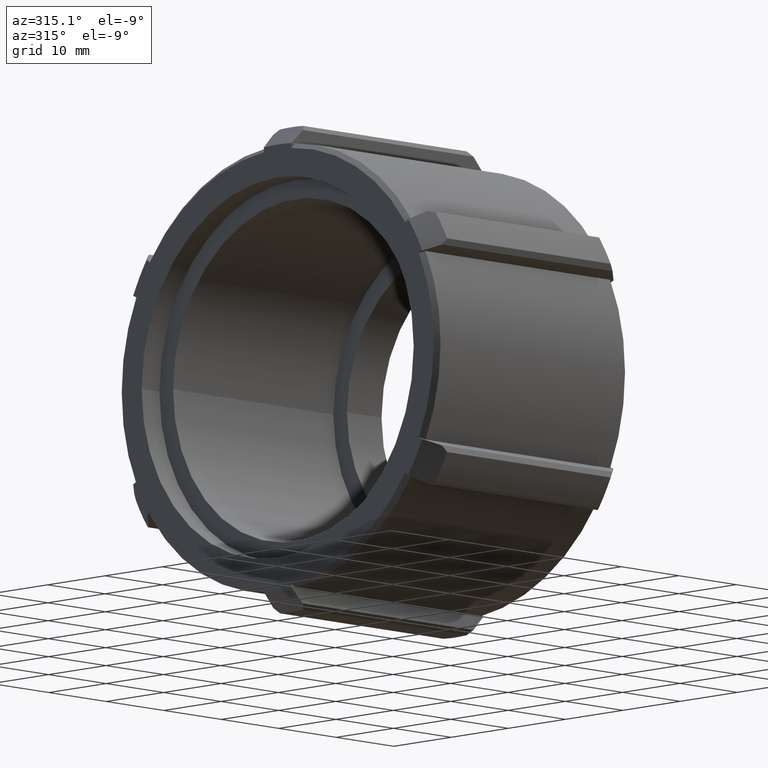
[diagram: clean part render]
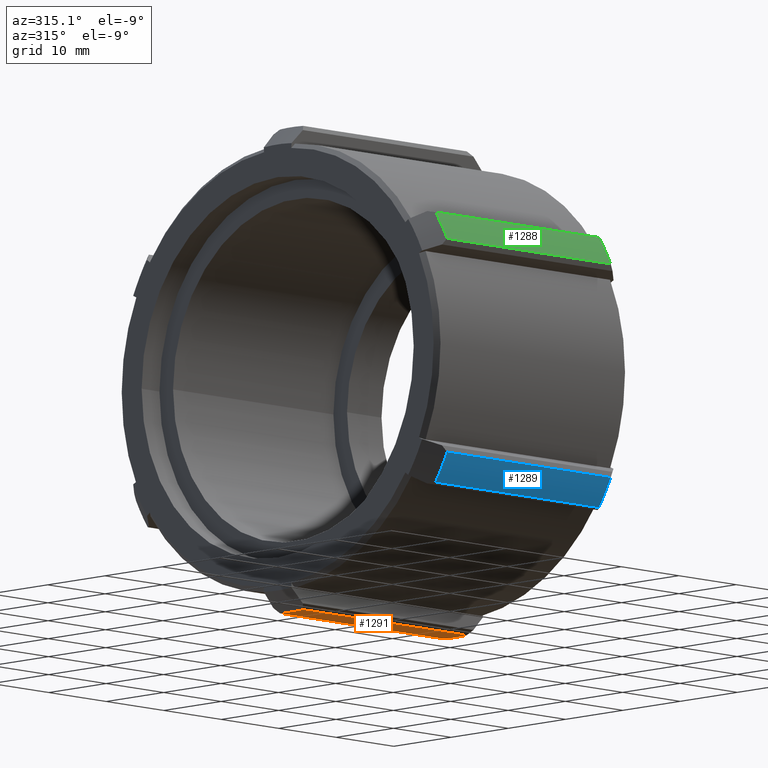
[diagram: same view with three faces highlighted in distinct colors, each labeled with its STEP entity id]
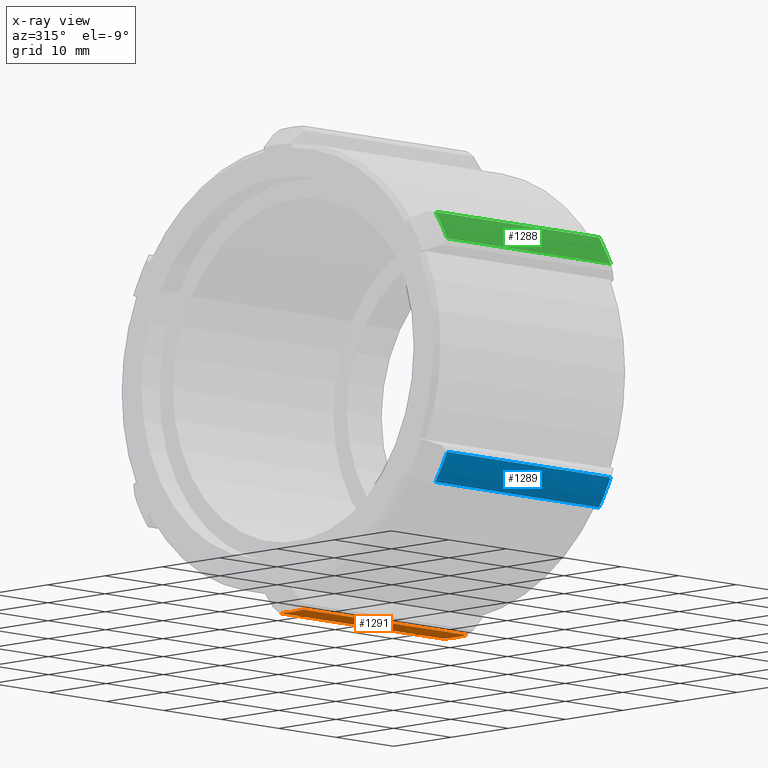
[diagram: x-ray of the same camera — body ghosted, the three highlighted faces saturated]
A machine part, auxiliary view with three faces highlighted in distinct colors.
The next image is the same camera in x-ray (body ghosted, the three faces saturated) — at least one of them is partly hidden behind the body in this view.
Their STEP definitions:

[orange] entity #1291 — the highlighted cylindrical surface (partial cylindrical patch) has radius 30.25 mm, axis along (1, 0, 0).
#74=CYLINDRICAL_SURFACE('',#1414,30.25);
#133=LINE('',#2014,#241);
#139=LINE('',#2034,#247);
#241=VECTOR('',#1615,28.46);
#247=VECTOR('',#1629,28.46);
#387=FACE_OUTER_BOUND('',#461,.T.);
#461=EDGE_LOOP('',(#1163,#1164,#1165,#1166));
#525=CIRCLE('',#1373,30.25);
#535=CIRCLE('',#1415,30.25);
#624=VERTEX_POINT('',#2009);
#625=VERTEX_POINT('',#2013);
#627=VERTEX_POINT('',#2025);
#629=VERTEX_POINT('',#2033);
#769=EDGE_CURVE('',#624,#625,#133,.T.);
#775=EDGE_CURVE('',#625,#627,#525,.T.);
#778=EDGE_CURVE('',#627,#629,#139,.T.);
#847=EDGE_CURVE('',#629,#624,#535,.T.);
#1163=ORIENTED_EDGE('',*,*,#769,.F.);
#1164=ORIENTED_EDGE('',*,*,#847,.F.);
#1165=ORIENTED_EDGE('',*,*,#778,.F.);
#1166=ORIENTED_EDGE('',*,*,#775,.F.);
#1291=ADVANCED_FACE('',(#387),#74,.T.);
#1373=AXIS2_PLACEMENT_3D('',#2026,#1624,#1625);
#1414=AXIS2_PLACEMENT_3D('',#2201,#1750,#1751);
#1415=AXIS2_PLACEMENT_3D('',#2202,#1752,#1753);
#1615=DIRECTION('',(-1.,0.,0.));
#1624=DIRECTION('center_axis',(-1.,0.,0.));
#1625=DIRECTION('ref_axis',(0.,-1.,0.));
#1629=DIRECTION('',(1.,0.,0.));
#1750=DIRECTION('center_axis',(1.,0.,0.));
#1751=DIRECTION('ref_axis',(0.,1.,0.));
#1752=DIRECTION('center_axis',(1.,0.,0.));
#1753=DIRECTION('ref_axis',(0.,-1.,0.));
#2009=CARTESIAN_POINT('',(30.88,2.03326626917051,-30.1815892271871));
#2013=CARTESIAN_POINT('',(2.42,2.03326626917051,-30.1815892271871));
#2014=CARTESIAN_POINT('',(16.65,2.03326626917051,-30.1815892271871));
#2025=CARTESIAN_POINT('',(2.42,-2.03326626917059,-30.181589227187));
#2026=CARTESIAN_POINT('Origin',(2.42,0.,0.));
#2033=CARTESIAN_POINT('',(30.88,-2.03326626917059,-30.181589227187));
#2034=CARTESIAN_POINT('',(16.65,-2.03326626917059,-30.181589227187));
#2201=CARTESIAN_POINT('Origin',(16.65,0.,0.));
#2202=CARTESIAN_POINT('Origin',(30.88,0.,0.));

[blue] entity #1289 — the highlighted cylindrical surface (partial cylindrical patch) has radius 30.25 mm, axis along (1, 0, 0).
#72=CYLINDRICAL_SURFACE('',#1410,30.25);
#143=LINE('',#2050,#251);
#149=LINE('',#2070,#257);
#251=VECTOR('',#1637,28.46);
#257=VECTOR('',#1651,28.46);
#385=FACE_OUTER_BOUND('',#459,.T.);
#459=EDGE_LOOP('',(#1155,#1156,#1157,#1158));
#526=CIRCLE('',#1379,30.25);
#533=CIRCLE('',#1411,30.25);
#632=VERTEX_POINT('',#2045);
#633=VERTEX_POINT('',#2049);
#635=VERTEX_POINT('',#2061);
#637=VERTEX_POINT('',#2069);
#784=EDGE_CURVE('',#632,#633,#143,.T.);
#790=EDGE_CURVE('',#633,#635,#526,.T.);
#793=EDGE_CURVE('',#635,#637,#149,.T.);
#844=EDGE_CURVE('',#637,#632,#533,.T.);
#1155=ORIENTED_EDGE('',*,*,#784,.F.);
#1156=ORIENTED_EDGE('',*,*,#844,.F.);
#1157=ORIENTED_EDGE('',*,*,#793,.F.);
#1158=ORIENTED_EDGE('',*,*,#790,.F.);
#1289=ADVANCED_FACE('',(#385),#72,.T.);
#1379=AXIS2_PLACEMENT_3D('',#2062,#1646,#1647);
#1410=AXIS2_PLACEMENT_3D('',#2195,#1741,#1742);
#1411=AXIS2_PLACEMENT_3D('',#2196,#1743,#1744);
#1637=DIRECTION('',(-1.,0.,0.));
#1646=DIRECTION('center_axis',(-1.,0.,0.));
#1647=DIRECTION('ref_axis',(0.,-1.,0.));
#1651=DIRECTION('',(1.,0.,0.));
#1741=DIRECTION('center_axis',(1.,0.,0.));
#1742=DIRECTION('ref_axis',(0.,1.,0.));
#1743=DIRECTION('center_axis',(1.,0.,0.));
#1744=DIRECTION('ref_axis',(0.,-1.,0.));
#2045=CARTESIAN_POINT('',(30.88,-25.1213898627455,-16.8516548553532));
#2049=CARTESIAN_POINT('',(2.42,-25.1213898627455,-16.8516548553532));
#2050=CARTESIAN_POINT('',(16.65,-25.1213898627455,-16.8516548553532));
#2061=CARTESIAN_POINT('',(2.42,-27.154656131916,-13.3299343718338));
#2062=CARTESIAN_POINT('Origin',(2.42,0.,0.));
#2069=CARTESIAN_POINT('',(30.88,-27.154656131916,-13.3299343718338));
#2070=CARTESIAN_POINT('',(16.65,-27.154656131916,-13.3299343718338));
#2195=CARTESIAN_POINT('Origin',(16.65,0.,0.));
#2196=CARTESIAN_POINT('Origin',(30.88,0.,0.));

[green] entity #1288 — the highlighted cylindrical surface (partial cylindrical patch) has radius 30.25 mm, axis along (1, 0, 0).
#71=CYLINDRICAL_SURFACE('',#1408,30.25);
#153=LINE('',#2086,#261);
#159=LINE('',#2106,#267);
#261=VECTOR('',#1659,28.46);
#267=VECTOR('',#1673,28.46);
#384=FACE_OUTER_BOUND('',#458,.T.);
#458=EDGE_LOOP('',(#1151,#1152,#1153,#1154));
#527=CIRCLE('',#1385,30.25);
#532=CIRCLE('',#1409,30.25);
#640=VERTEX_POINT('',#2081);
#641=VERTEX_POINT('',#2085);
#643=VERTEX_POINT('',#2097);
#645=VERTEX_POINT('',#2105);
#799=EDGE_CURVE('',#640,#641,#153,.T.);
#805=EDGE_CURVE('',#641,#643,#527,.T.);
#808=EDGE_CURVE('',#643,#645,#159,.T.);
#843=EDGE_CURVE('',#645,#640,#532,.T.);
#1151=ORIENTED_EDGE('',*,*,#799,.F.);
#1152=ORIENTED_EDGE('',*,*,#843,.F.);
#1153=ORIENTED_EDGE('',*,*,#808,.F.);
#1154=ORIENTED_EDGE('',*,*,#805,.F.);
#1288=ADVANCED_FACE('',(#384),#71,.T.);
#1385=AXIS2_PLACEMENT_3D('',#2098,#1668,#1669);
#1408=AXIS2_PLACEMENT_3D('',#2193,#1737,#1738);
#1409=AXIS2_PLACEMENT_3D('',#2194,#1739,#1740);
#1659=DIRECTION('',(-1.,0.,0.));
#1668=DIRECTION('center_axis',(-1.,0.,0.));
#1669=DIRECTION('ref_axis',(0.,-1.,0.));
#1673=DIRECTION('',(1.,0.,0.));
#1737=DIRECTION('center_axis',(1.,0.,0.));
#1738=DIRECTION('ref_axis',(0.,1.,0.));
#1739=DIRECTION('center_axis',(1.,0.,0.));
#1740=DIRECTION('ref_axis',(0.,-1.,0.));
#2081=CARTESIAN_POINT('',(30.88,-27.154656131916,13.3299343718338));
#2085=CARTESIAN_POINT('',(2.42,-27.154656131916,13.3299343718338));
#2086=CARTESIAN_POINT('',(16.65,-27.154656131916,13.3299343718338));
#2097=CARTESIAN_POINT('',(2.42,-25.1213898627454,16.8516548553533));
#2098=CARTESIAN_POINT('Origin',(2.42,0.,0.));
#2105=CARTESIAN_POINT('',(30.88,-25.1213898627454,16.8516548553533));
#2106=CARTESIAN_POINT('',(16.65,-25.1213898627454,16.8516548553533));
#2193=CARTESIAN_POINT('Origin',(16.65,0.,0.));
#2194=CARTESIAN_POINT('Origin',(30.88,0.,0.));